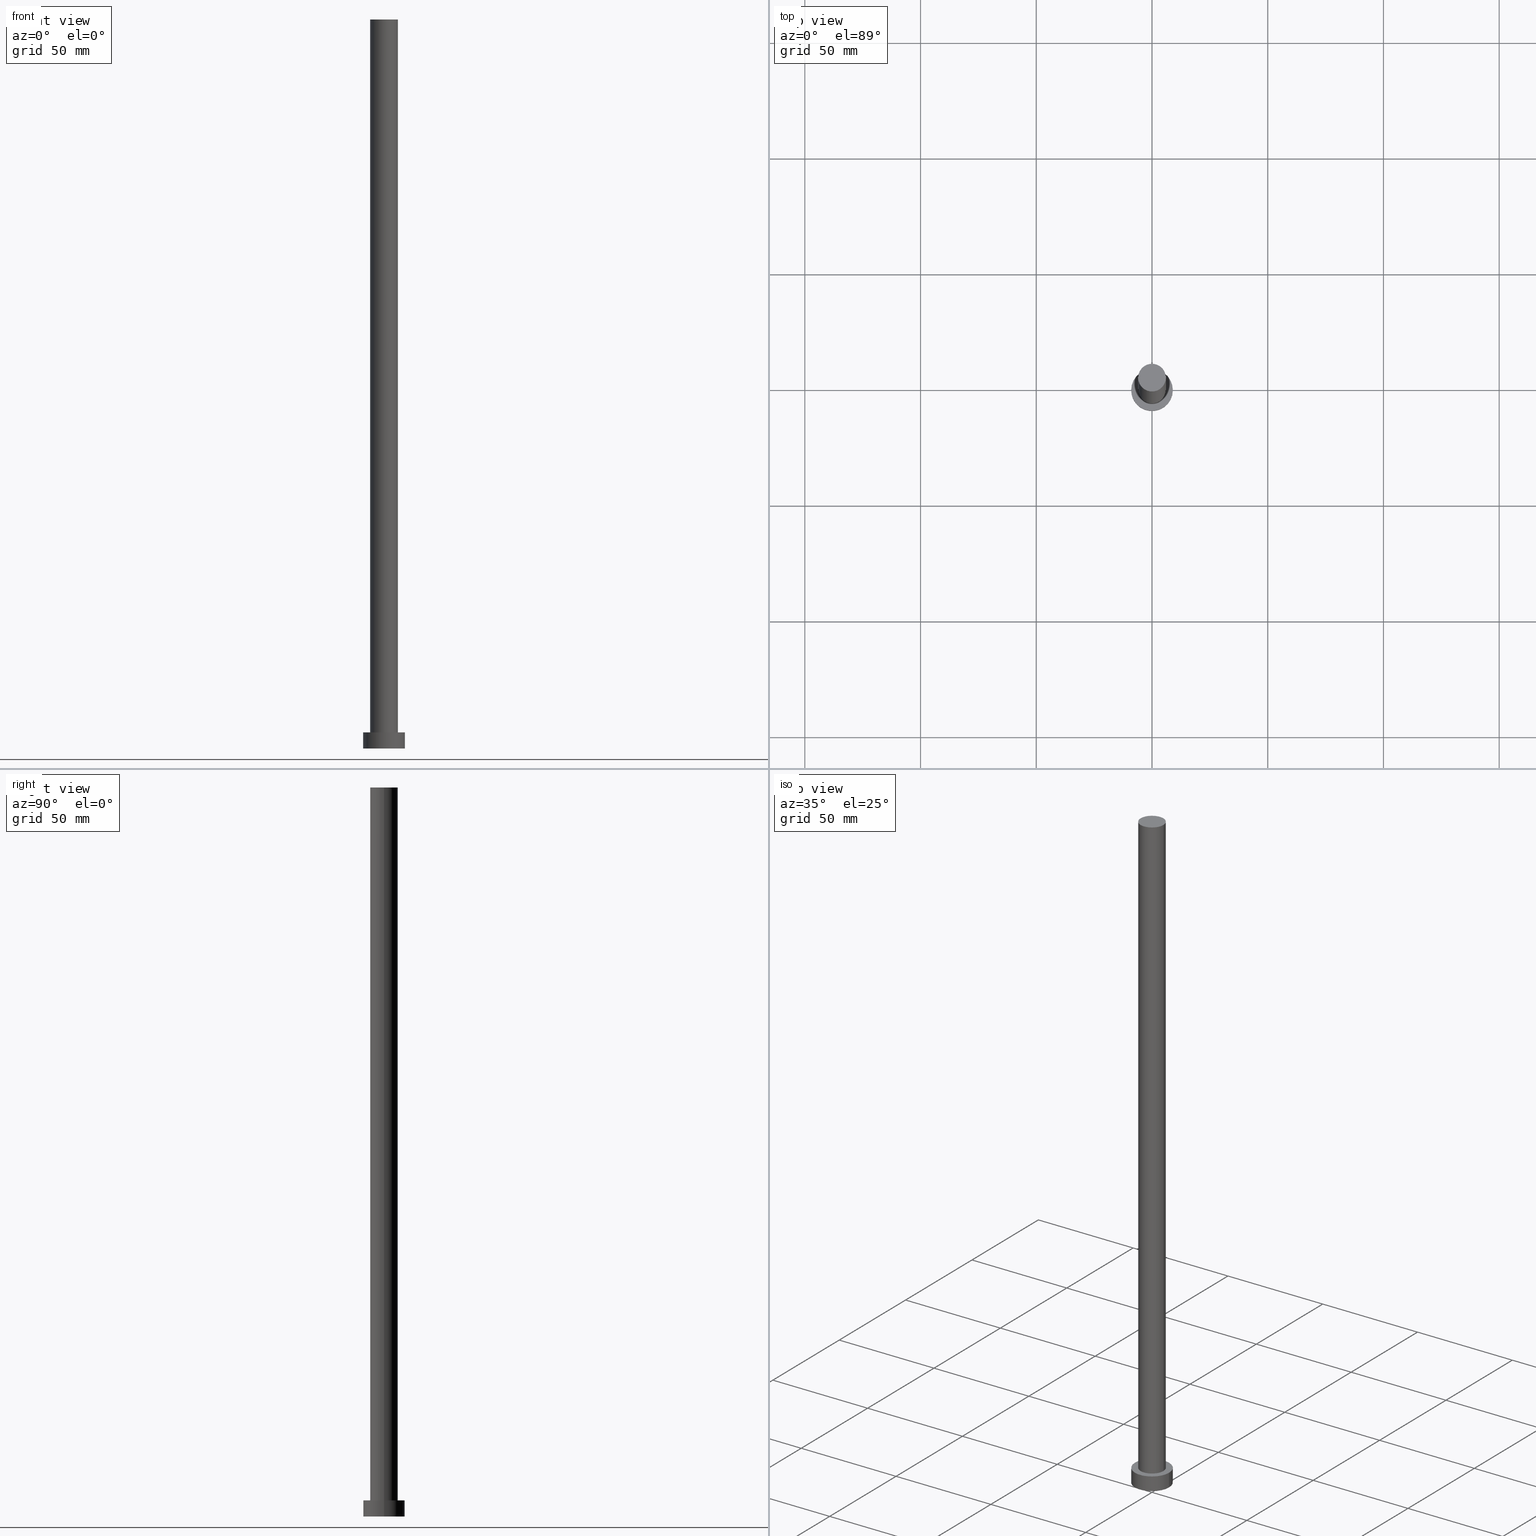
[diagram: canonical four-view strip — front | top / right | iso, engineering-drawing reading convention]
A machine part, canonical four-view strip (front | top / right | iso — engineering-drawing reading convention). The complete STEP part file that produces these views, byte-faithful:
ISO-10303-21;
HEADER;
FILE_DESCRIPTION (( 'STEP AP203' ),
    '1' );
FILE_NAME ('53f3.STEP',
    '2023-02-12T10:49:08',
    ( '' ),
    ( '' ),
    'SwSTEP 2.0',
    'SolidWorks 2019',
    '' );
FILE_SCHEMA (( 'CONFIG_CONTROL_DESIGN' ));
ENDSEC;

DATA;
#1 = AXIS2_PLACEMENT_3D ( 'NONE', #58, #236, #221 ) ;
#2 = DIRECTION ( 'NONE',  ( 0.000000000000000000, 0.000000000000000000, 1.000000000000000000 ) ) ;
#3 = ORIENTED_EDGE ( 'NONE', *, *, #216, .F. ) ;
#4 =( GEOMETRIC_REPRESENTATION_CONTEXT ( 3 ) GLOBAL_UNCERTAINTY_ASSIGNED_CONTEXT ( ( #155 ) ) GLOBAL_UNIT_ASSIGNED_CONTEXT ( ( #237, #182, #217 ) ) REPRESENTATION_CONTEXT ( 'NONE', 'WORKASPACE' ) );
#5 = PRODUCT_DEFINITION_FORMATION_WITH_SPECIFIED_SOURCE ( 'LIBOVOLN�', '', #153, .NOT_KNOWN. ) ;
#6 = SECURITY_CLASSIFICATION_LEVEL ( 'unclassified' ) ;
#7 = ORIENTED_EDGE ( 'NONE', *, *, #60, .F. ) ;
#8 = DATE_AND_TIME ( #77, #11 ) ;
#9 = ORIENTED_EDGE ( 'NONE', *, *, #29, .T. ) ;
#10 = ORIENTED_EDGE ( 'NONE', *, *, #29, .F. ) ;
#11 = LOCAL_TIME ( 11, 49, 8.000000000000000000, #101 ) ;
#12 = CYLINDRICAL_SURFACE ( 'NONE', #13, 6.000000000000000888 ) ;
#13 = AXIS2_PLACEMENT_3D ( 'NONE', #115, #247, #96 ) ;
#14 = CARTESIAN_POINT ( 'NONE',  ( -6.000000000000000888, 0.000000000000000000, 315.0000000000000000 ) ) ;
#15 = CYLINDRICAL_SURFACE ( 'NONE', #105, 9.000000000000000000 ) ;
#16 = EDGE_CURVE ( 'NONE', #227, #167, #33, .T. ) ;
#17 = DIRECTION ( 'NONE',  ( -1.000000000000000000, 0.000000000000000000, 0.000000000000000000 ) ) ;
#18 = AXIS2_PLACEMENT_3D ( 'NONE', #97, #53, #17 ) ;
#19 = CARTESIAN_POINT ( 'NONE',  ( 0.000000000000000000, 0.000000000000000000, 315.0000000000000000 ) ) ;
#20 = APPROVAL_DATE_TIME ( #183, #233 ) ;
#21 = APPROVAL_STATUS ( 'not_yet_approved' ) ;
#22 = PERSON_AND_ORGANIZATION_ROLE ( 'creator' ) ;
#23 = APPROVAL_PERSON_ORGANIZATION ( #140, #233, #41 ) ;
#24 = APPLICATION_PROTOCOL_DEFINITION ( 'international standard', 'config_control_design', 1994, #178 ) ;
#25 = ADVANCED_FACE ( 'NONE', ( #134 ), #215, .F. ) ;
#26 = PERSON_AND_ORGANIZATION ( #87, #137 ) ;
#27 = APPROVAL_STATUS ( 'not_yet_approved' ) ;
#28 = ORIENTED_EDGE ( 'NONE', *, *, #166, .F. ) ;
#29 = EDGE_CURVE ( 'NONE', #227, #188, #209, .T. ) ;
#30 = EDGE_LOOP ( 'NONE', ( #189, #9 ) ) ;
#31 = ORIENTED_EDGE ( 'NONE', *, *, #70, .F. ) ;
#32 = EDGE_CURVE ( 'NONE', #49, #136, #141, .T. ) ;
#33 = LINE ( 'NONE', #235, #131 ) ;
#34 = ORIENTED_EDGE ( 'NONE', *, *, #216, .T. ) ;
#35 = AXIS2_PLACEMENT_3D ( 'NONE', #19, #68, #100 ) ;
#36 = CARTESIAN_POINT ( 'NONE',  ( 9.000000000000000000, 1.102182119232617714E-15, 7.000000000000000000 ) ) ;
#37 = CIRCLE ( 'NONE', #47, 6.000000000000000888 ) ;
#38 = APPROVAL_PERSON_ORGANIZATION ( #142, #90, #76 ) ;
#39 = CARTESIAN_POINT ( 'NONE',  ( 0.000000000000000000, 0.000000000000000000, 315.0000000000000000 ) ) ;
#40 = CARTESIAN_POINT ( 'NONE',  ( 0.000000000000000000, 0.000000000000000000, 315.0000000000000000 ) ) ;
#41 = APPROVAL_ROLE ( '' ) ;
#42 = DIRECTION ( 'NONE',  ( 1.000000000000000000, 0.000000000000000000, -0.000000000000000000 ) ) ;
#43 = DIRECTION ( 'NONE',  ( 1.000000000000000000, 0.000000000000000000, 0.000000000000000000 ) ) ;
#44 = CALENDAR_DATE ( 2023, 12, 2 ) ;
#45 = CARTESIAN_POINT ( 'NONE',  ( 9.000000000000000000, 1.102182119232617714E-15, 0.000000000000000000 ) ) ;
#46 = EDGE_CURVE ( 'NONE', #136, #130, #55, .T. ) ;
#47 = AXIS2_PLACEMENT_3D ( 'NONE', #104, #2, #126 ) ;
#48 = APPROVAL_DATE_TIME ( #8, #90 ) ;
#49 = VERTEX_POINT ( 'NONE', #135 ) ;
#50 = COORDINATED_UNIVERSAL_TIME_OFFSET ( 1, 0, .AHEAD. ) ;
#51 = CARTESIAN_POINT ( 'NONE',  ( 6.000000000000000888, 7.347880794884120722E-16, 7.000000000000000000 ) ) ;
#52 = CIRCLE ( 'NONE', #162, 6.000000000000000888 ) ;
#53 = DIRECTION ( 'NONE',  ( -0.000000000000000000, -0.000000000000000000, -1.000000000000000000 ) ) ;
#54 = APPROVAL ( #27, 'NEUR�EN�' ) ;
#55 = LINE ( 'NONE', #200, #112 ) ;
#56 = DIRECTION ( 'NONE',  ( 1.000000000000000000, 0.000000000000000000, 0.000000000000000000 ) ) ;
#57 = DIRECTION ( 'NONE',  ( -0.000000000000000000, -0.000000000000000000, -1.000000000000000000 ) ) ;
#58 = CARTESIAN_POINT ( 'NONE',  ( 0.000000000000000000, 0.000000000000000000, 0.000000000000000000 ) ) ;
#59 = ADVANCED_FACE ( 'NONE', ( #73 ), #179, .T. ) ;
#60 = EDGE_CURVE ( 'NONE', #188, #241, #98, .T. ) ;
#61 = PLANE ( 'NONE',  #147 ) ;
#62 = DIRECTION ( 'NONE',  ( 1.000000000000000000, 0.000000000000000000, 0.000000000000000000 ) ) ;
#63 = CALENDAR_DATE ( 2023, 12, 2 ) ;
#64 = SECURITY_CLASSIFICATION ( '', '', #6 ) ;
#65 = ORIENTED_EDGE ( 'NONE', *, *, #16, .T. ) ;
#66 = DATE_AND_TIME ( #63, #157 ) ;
#67 = ORIENTED_EDGE ( 'NONE', *, *, #46, .T. ) ;
#68 = DIRECTION ( 'NONE',  ( 0.000000000000000000, 0.000000000000000000, 1.000000000000000000 ) ) ;
#69 = CYLINDRICAL_SURFACE ( 'NONE', #196, 6.000000000000000888 ) ;
#70 = EDGE_CURVE ( 'NONE', #130, #223, #224, .T. ) ;
#71 = CIRCLE ( 'NONE', #198, 9.000000000000000000 ) ;
#72 = DIRECTION ( 'NONE',  ( 0.000000000000000000, 0.000000000000000000, 1.000000000000000000 ) ) ;
#73 = FACE_OUTER_BOUND ( 'NONE', #245, .T. ) ;
#74 = DIRECTION ( 'NONE',  ( -0.000000000000000000, -0.000000000000000000, -1.000000000000000000 ) ) ;
#75 = PRODUCT_DEFINITION ( 'NEZN�M�', '', #5, #195 ) ;
#76 = APPROVAL_ROLE ( '' ) ;
#77 = CALENDAR_DATE ( 2023, 12, 2 ) ;
#78 = CARTESIAN_POINT ( 'NONE',  ( -6.000000000000000888, 0.000000000000000000, 7.000000000000000000 ) ) ;
#79 = AXIS2_PLACEMENT_3D ( 'NONE', #249, #150, #56 ) ;
#80 = CC_DESIGN_APPROVAL ( #233, ( #75 ) ) ;
#81 = FACE_OUTER_BOUND ( 'NONE', #108, .T. ) ;
#82 = PERSON_AND_ORGANIZATION ( #87, #137 ) ;
#83 = APPROVAL_DATE_TIME ( #110, #54 ) ;
#84 = ORIENTED_EDGE ( 'NONE', *, *, #16, .F. ) ;
#85 = COORDINATED_UNIVERSAL_TIME_OFFSET ( 1, 0, .AHEAD. ) ;
#86 = ORIENTED_EDGE ( 'NONE', *, *, #226, .F. ) ;
#87 = PERSON ( 'NEUR�EN�', 'NEUR�EN�', 'NEUR�EN�', ('NEUR�EN�'), ('NEUR�EN�'), ('NEUR�EN�') ) ;
#88 = AXIS2_PLACEMENT_3D ( 'NONE', #39, #119, #116 ) ;
#89 = ORIENTED_EDGE ( 'NONE', *, *, #32, .F. ) ;
#90 = APPROVAL ( #254, 'NEUR�EN�' ) ;
#91 = ORIENTED_EDGE ( 'NONE', *, *, #60, .T. ) ;
#92 = APPROVAL_PERSON_ORGANIZATION ( #143, #54, #190 ) ;
#93 = ORIENTED_EDGE ( 'NONE', *, *, #184, .F. ) ;
#94 = ADVANCED_FACE ( 'NONE', ( #252 ), #12, .T. ) ;
#95 = PLANE ( 'NONE',  #35 ) ;
#96 = DIRECTION ( 'NONE',  ( -1.000000000000000000, 0.000000000000000000, 0.000000000000000000 ) ) ;
#97 = CARTESIAN_POINT ( 'NONE',  ( 0.000000000000000000, 0.000000000000000000, 7.000000000000000000 ) ) ;
#98 = LINE ( 'NONE', #14, #206 ) ;
#99 = ADVANCED_FACE ( 'NONE', ( #176 ), #69, .T. ) ;
#100 = DIRECTION ( 'NONE',  ( 1.000000000000000000, 0.000000000000000000, -0.000000000000000000 ) ) ;
#101 = COORDINATED_UNIVERSAL_TIME_OFFSET ( 1, 0, .AHEAD. ) ;
#102 = CC_DESIGN_PERSON_AND_ORGANIZATION_ASSIGNMENT ( #26, #163, ( #153 ) ) ;
#103 = APPLICATION_PROTOCOL_DEFINITION ( 'international standard', 'config_control_design', 1994, #138 ) ;
#104 = CARTESIAN_POINT ( 'NONE',  ( 0.000000000000000000, 0.000000000000000000, 7.000000000000000000 ) ) ;
#105 = AXIS2_PLACEMENT_3D ( 'NONE', #132, #177, #210 ) ;
#106 = DATE_TIME_ROLE ( 'creation_date' ) ;
#107 = CLOSED_SHELL ( 'NONE', ( #99, #59, #173, #192, #25, #94, #127 ) ) ;
#108 = EDGE_LOOP ( 'NONE', ( #144, #246 ) ) ;
#109 = EDGE_CURVE ( 'NONE', #223, #130, #160, .T. ) ;
#110 = DATE_AND_TIME ( #242, #253 ) ;
#111 = ORIENTED_EDGE ( 'NONE', *, *, #225, .T. ) ;
#112 = VECTOR ( 'NONE', #74, 1000.000000000000000 ) ;
#113 = ORIENTED_EDGE ( 'NONE', *, *, #70, .T. ) ;
#114 = EDGE_LOOP ( 'NONE', ( #10, #65, #34, #7 ) ) ;
#115 = CARTESIAN_POINT ( 'NONE',  ( 0.000000000000000000, 0.000000000000000000, 315.0000000000000000 ) ) ;
#116 = DIRECTION ( 'NONE',  ( 1.000000000000000000, 0.000000000000000000, 0.000000000000000000 ) ) ;
#117 = AXIS2_PLACEMENT_3D ( 'NONE', #120, #212, #154 ) ;
#118 = DIRECTION ( 'NONE',  ( -0.000000000000000000, -0.000000000000000000, -1.000000000000000000 ) ) ;
#119 = DIRECTION ( 'NONE',  ( 0.000000000000000000, 0.000000000000000000, 1.000000000000000000 ) ) ;
#120 = CARTESIAN_POINT ( 'NONE',  ( 0.000000000000000000, 0.000000000000000000, 0.000000000000000000 ) ) ;
#121 = COORDINATED_UNIVERSAL_TIME_OFFSET ( 1, 0, .AHEAD. ) ;
#122 = CC_DESIGN_PERSON_AND_ORGANIZATION_ASSIGNMENT ( #82, #240, ( #5 ) ) ;
#123 = CARTESIAN_POINT ( 'NONE',  ( 0.000000000000000000, 0.000000000000000000, 7.000000000000000000 ) ) ;
#124 = CALENDAR_DATE ( 2023, 12, 2 ) ;
#125 = CC_DESIGN_APPROVAL ( #54, ( #64 ) ) ;
#126 = DIRECTION ( 'NONE',  ( 1.000000000000000000, 0.000000000000000000, 0.000000000000000000 ) ) ;
#127 = ADVANCED_FACE ( 'NONE', ( #250 ), #95, .T. ) ;
#128 = CC_DESIGN_PERSON_AND_ORGANIZATION_ASSIGNMENT ( #168, #170, ( #5 ) ) ;
#129 = PRODUCT_RELATED_PRODUCT_CATEGORY ( 'detail', '', ( #153 ) ) ;
#130 = VERTEX_POINT ( 'NONE', #231 ) ;
#131 = VECTOR ( 'NONE', #151, 1000.000000000000000 ) ;
#132 = CARTESIAN_POINT ( 'NONE',  ( 0.000000000000000000, 0.000000000000000000, 7.000000000000000000 ) ) ;
#133 = ADVANCED_BREP_SHAPE_REPRESENTATION ( '53f3', ( #230, #1 ), #4 ) ;
#134 = FACE_OUTER_BOUND ( 'NONE', #172, .T. ) ;
#135 = CARTESIAN_POINT ( 'NONE',  ( 9.000000000000000000, 1.102182119232617714E-15, 7.000000000000000000 ) ) ;
#136 = VERTEX_POINT ( 'NONE', #149 ) ;
#137 = ORGANIZATION ( 'NEUR�EN�', 'NEUR�EN�', '' ) ;
#138 = APPLICATION_CONTEXT ( 'configuration controlled 3d designs of mechanical parts and assemblies' ) ;
#139 = DIRECTION ( 'NONE',  ( -1.000000000000000000, 0.000000000000000000, 0.000000000000000000 ) ) ;
#140 = PERSON_AND_ORGANIZATION ( #87, #137 ) ;
#141 = CIRCLE ( 'NONE', #165, 9.000000000000000000 ) ;
#142 = PERSON_AND_ORGANIZATION ( #87, #137 ) ;
#143 = PERSON_AND_ORGANIZATION ( #87, #137 ) ;
#144 = ORIENTED_EDGE ( 'NONE', *, *, #226, .T. ) ;
#145 = AXIS2_PLACEMENT_3D ( 'NONE', #211, #194, #199 ) ;
#146 = ORIENTED_EDGE ( 'NONE', *, *, #109, .F. ) ;
#147 = AXIS2_PLACEMENT_3D ( 'NONE', #164, #204, #42 ) ;
#148 = DATE_TIME_ROLE ( 'classification_date' ) ;
#149 = CARTESIAN_POINT ( 'NONE',  ( -9.000000000000000000, 0.000000000000000000, 7.000000000000000000 ) ) ;
#150 = DIRECTION ( 'NONE',  ( 0.000000000000000000, 0.000000000000000000, 1.000000000000000000 ) ) ;
#151 = DIRECTION ( 'NONE',  ( -0.000000000000000000, -0.000000000000000000, -1.000000000000000000 ) ) ;
#152 = CC_DESIGN_DATE_AND_TIME_ASSIGNMENT ( #66, #148, ( #64 ) ) ;
#153 = PRODUCT ( '53f3', '53f3', '', ( #202 ) ) ;
#154 = DIRECTION ( 'NONE',  ( 1.000000000000000000, 0.000000000000000000, 0.000000000000000000 ) ) ;
#155 = UNCERTAINTY_MEASURE_WITH_UNIT (LENGTH_MEASURE( 1.000000000000000082E-05 ), #237, 'distance_accuracy_value', 'NONE');
#156 = DIRECTION ( 'NONE',  ( -0.000000000000000000, -0.000000000000000000, -1.000000000000000000 ) ) ;
#157 = LOCAL_TIME ( 11, 49, 8.000000000000000000, #85 ) ;
#158 = DIRECTION ( 'NONE',  ( 0.000000000000000000, 0.000000000000000000, 1.000000000000000000 ) ) ;
#159 = CARTESIAN_POINT ( 'NONE',  ( 6.000000000000000888, 7.347880794884120722E-16, 315.0000000000000000 ) ) ;
#160 = CIRCLE ( 'NONE', #117, 9.000000000000000000 ) ;
#161 = DIRECTION ( 'NONE',  ( 0.000000000000000000, 0.000000000000000000, 1.000000000000000000 ) ) ;
#162 = AXIS2_PLACEMENT_3D ( 'NONE', #123, #161, #43 ) ;
#163 = PERSON_AND_ORGANIZATION_ROLE ( 'design_owner' ) ;
#164 = CARTESIAN_POINT ( 'NONE',  ( 0.000000000000000000, 0.000000000000000000, 7.000000000000000000 ) ) ;
#165 = AXIS2_PLACEMENT_3D ( 'NONE', #229, #72, #251 ) ;
#166 = EDGE_CURVE ( 'NONE', #49, #223, #232, .T. ) ;
#167 = VERTEX_POINT ( 'NONE', #51 ) ;
#168 = PERSON_AND_ORGANIZATION ( #87, #137 ) ;
#169 = ORIENTED_EDGE ( 'NONE', *, *, #166, .T. ) ;
#170 = PERSON_AND_ORGANIZATION_ROLE ( 'creator' ) ;
#171 = PERSON_AND_ORGANIZATION ( #87, #137 ) ;
#172 = EDGE_LOOP ( 'NONE', ( #31, #146 ) ) ;
#173 = ADVANCED_FACE ( 'NONE', ( #175 ), #15, .T. ) ;
#174 = EDGE_LOOP ( 'NONE', ( #191, #3 ) ) ;
#175 = FACE_OUTER_BOUND ( 'NONE', #186, .T. ) ;
#176 = FACE_OUTER_BOUND ( 'NONE', #114, .T. ) ;
#177 = DIRECTION ( 'NONE',  ( -0.000000000000000000, -0.000000000000000000, -1.000000000000000000 ) ) ;
#178 = APPLICATION_CONTEXT ( 'configuration controlled 3d designs of mechanical parts and assemblies' ) ;
#179 = CYLINDRICAL_SURFACE ( 'NONE', #18, 9.000000000000000000 ) ;
#180 = COORDINATED_UNIVERSAL_TIME_OFFSET ( 1, 0, .AHEAD. ) ;
#181 = LOCAL_TIME ( 11, 49, 8.000000000000000000, #121 ) ;
#182 =( NAMED_UNIT ( * ) PLANE_ANGLE_UNIT ( ) SI_UNIT ( $, .RADIAN. ) );
#183 = DATE_AND_TIME ( #44, #219 ) ;
#184 = EDGE_CURVE ( 'NONE', #188, #227, #208, .T. ) ;
#185 = DATE_AND_TIME ( #124, #181 ) ;
#186 = EDGE_LOOP ( 'NONE', ( #28, #86, #67, #113 ) ) ;
#187 = VECTOR ( 'NONE', #118, 1000.000000000000000 ) ;
#188 = VERTEX_POINT ( 'NONE', #238 ) ;
#189 = ORIENTED_EDGE ( 'NONE', *, *, #184, .T. ) ;
#190 = APPROVAL_ROLE ( '' ) ;
#191 = ORIENTED_EDGE ( 'NONE', *, *, #225, .F. ) ;
#192 = ADVANCED_FACE ( 'NONE', ( #218, #81 ), #61, .T. ) ;
#193 = EDGE_LOOP ( 'NONE', ( #84, #93, #91, #111 ) ) ;
#194 = DIRECTION ( 'NONE',  ( 0.000000000000000000, 0.000000000000000000, 1.000000000000000000 ) ) ;
#195 = DESIGN_CONTEXT ( 'detailed design', #138, 'design' ) ;
#196 = AXIS2_PLACEMENT_3D ( 'NONE', #40, #156, #139 ) ;
#197 = CARTESIAN_POINT ( 'NONE',  ( 0.000000000000000000, 0.000000000000000000, 0.000000000000000000 ) ) ;
#198 = AXIS2_PLACEMENT_3D ( 'NONE', #255, #158, #62 ) ;
#199 = DIRECTION ( 'NONE',  ( 1.000000000000000000, 0.000000000000000000, 0.000000000000000000 ) ) ;
#200 = CARTESIAN_POINT ( 'NONE',  ( -9.000000000000000000, 0.000000000000000000, 7.000000000000000000 ) ) ;
#201 = DIRECTION ( 'NONE',  ( 1.000000000000000000, 0.000000000000000000, -0.000000000000000000 ) ) ;
#202 = MECHANICAL_CONTEXT ( 'NONE', #178, 'mechanical' ) ;
#203 = CC_DESIGN_PERSON_AND_ORGANIZATION_ASSIGNMENT ( #171, #244, ( #64 ) ) ;
#204 = DIRECTION ( 'NONE',  ( 0.000000000000000000, 0.000000000000000000, 1.000000000000000000 ) ) ;
#205 = CC_DESIGN_APPROVAL ( #90, ( #5 ) ) ;
#206 = VECTOR ( 'NONE', #57, 1000.000000000000000 ) ;
#207 = ORIENTED_EDGE ( 'NONE', *, *, #109, .T. ) ;
#208 = CIRCLE ( 'NONE', #79, 6.000000000000000888 ) ;
#209 = CIRCLE ( 'NONE', #88, 6.000000000000000888 ) ;
#210 = DIRECTION ( 'NONE',  ( -1.000000000000000000, 0.000000000000000000, 0.000000000000000000 ) ) ;
#211 = CARTESIAN_POINT ( 'NONE',  ( 0.000000000000000000, 0.000000000000000000, 0.000000000000000000 ) ) ;
#212 = DIRECTION ( 'NONE',  ( 0.000000000000000000, 0.000000000000000000, 1.000000000000000000 ) ) ;
#213 = ORIENTED_EDGE ( 'NONE', *, *, #46, .F. ) ;
#214 = PRODUCT_DEFINITION_SHAPE ( 'NONE', 'NONE',  #75 ) ;
#215 = PLANE ( 'NONE',  #248 ) ;
#216 = EDGE_CURVE ( 'NONE', #167, #241, #52, .T. ) ;
#217 =( NAMED_UNIT ( * ) SI_UNIT ( $, .STERADIAN. ) SOLID_ANGLE_UNIT ( ) );
#218 = FACE_BOUND ( 'NONE', #174, .T. ) ;
#219 = LOCAL_TIME ( 11, 49, 8.000000000000000000, #180 ) ;
#220 = PERSON_AND_ORGANIZATION ( #87, #137 ) ;
#221 = DIRECTION ( 'NONE',  ( 1.000000000000000000, 0.000000000000000000, 0.000000000000000000 ) ) ;
#222 = SHAPE_DEFINITION_REPRESENTATION ( #214, #133 ) ;
#223 = VERTEX_POINT ( 'NONE', #45 ) ;
#224 = CIRCLE ( 'NONE', #145, 9.000000000000000000 ) ;
#225 = EDGE_CURVE ( 'NONE', #241, #167, #37, .T. ) ;
#226 = EDGE_CURVE ( 'NONE', #136, #49, #71, .T. ) ;
#227 = VERTEX_POINT ( 'NONE', #159 ) ;
#228 = DIRECTION ( 'NONE',  ( 0.000000000000000000, 0.000000000000000000, 1.000000000000000000 ) ) ;
#229 = CARTESIAN_POINT ( 'NONE',  ( 0.000000000000000000, 0.000000000000000000, 7.000000000000000000 ) ) ;
#230 = MANIFOLD_SOLID_BREP ( 'P�idat vysunut�m3', #107 ) ;
#231 = CARTESIAN_POINT ( 'NONE',  ( -9.000000000000000000, 0.000000000000000000, 0.000000000000000000 ) ) ;
#232 = LINE ( 'NONE', #36, #187 ) ;
#233 = APPROVAL ( #21, 'NEUR�EN�' ) ;
#234 = CC_DESIGN_SECURITY_CLASSIFICATION ( #64, ( #5 ) ) ;
#235 = CARTESIAN_POINT ( 'NONE',  ( 6.000000000000000888, 7.347880794884120722E-16, 315.0000000000000000 ) ) ;
#236 = DIRECTION ( 'NONE',  ( 0.000000000000000000, 0.000000000000000000, 1.000000000000000000 ) ) ;
#237 =( LENGTH_UNIT ( ) NAMED_UNIT ( * ) SI_UNIT ( .MILLI., .METRE. ) );
#238 = CARTESIAN_POINT ( 'NONE',  ( -6.000000000000000888, 0.000000000000000000, 315.0000000000000000 ) ) ;
#239 = CC_DESIGN_PERSON_AND_ORGANIZATION_ASSIGNMENT ( #220, #22, ( #75 ) ) ;
#240 = PERSON_AND_ORGANIZATION_ROLE ( 'design_supplier' ) ;
#241 = VERTEX_POINT ( 'NONE', #78 ) ;
#242 = CALENDAR_DATE ( 2023, 12, 2 ) ;
#243 = CC_DESIGN_DATE_AND_TIME_ASSIGNMENT ( #185, #106, ( #75 ) ) ;
#244 = PERSON_AND_ORGANIZATION_ROLE ( 'classification_officer' ) ;
#245 = EDGE_LOOP ( 'NONE', ( #89, #169, #207, #213 ) ) ;
#246 = ORIENTED_EDGE ( 'NONE', *, *, #32, .T. ) ;
#247 = DIRECTION ( 'NONE',  ( -0.000000000000000000, -0.000000000000000000, -1.000000000000000000 ) ) ;
#248 = AXIS2_PLACEMENT_3D ( 'NONE', #197, #228, #201 ) ;
#249 = CARTESIAN_POINT ( 'NONE',  ( 0.000000000000000000, 0.000000000000000000, 315.0000000000000000 ) ) ;
#250 = FACE_OUTER_BOUND ( 'NONE', #30, .T. ) ;
#251 = DIRECTION ( 'NONE',  ( 1.000000000000000000, 0.000000000000000000, 0.000000000000000000 ) ) ;
#252 = FACE_OUTER_BOUND ( 'NONE', #193, .T. ) ;
#253 = LOCAL_TIME ( 11, 49, 8.000000000000000000, #50 ) ;
#254 = APPROVAL_STATUS ( 'not_yet_approved' ) ;
#255 = CARTESIAN_POINT ( 'NONE',  ( 0.000000000000000000, 0.000000000000000000, 7.000000000000000000 ) ) ;
ENDSEC;
END-ISO-10303-21;
